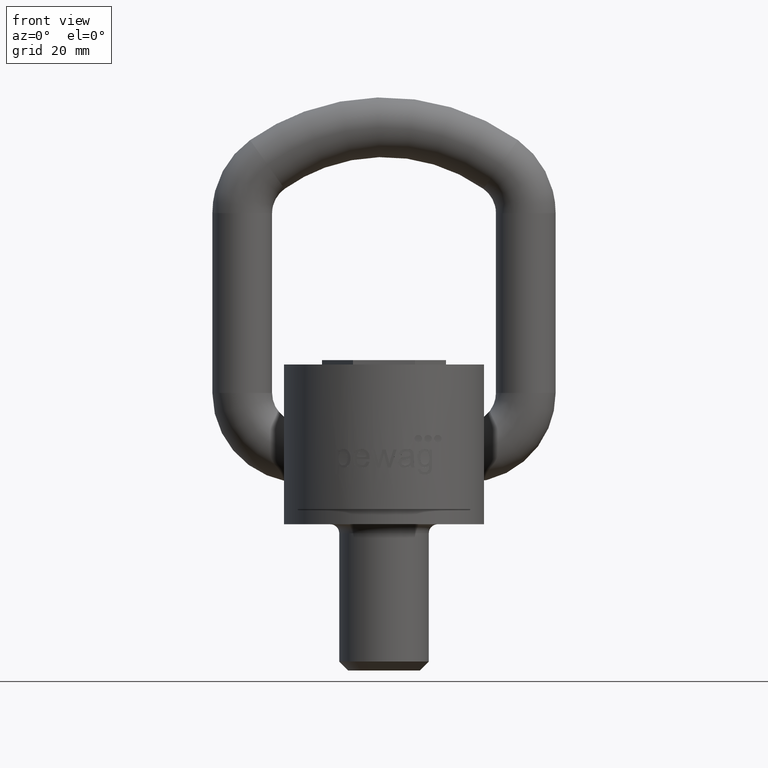
[diagram: clean part render]
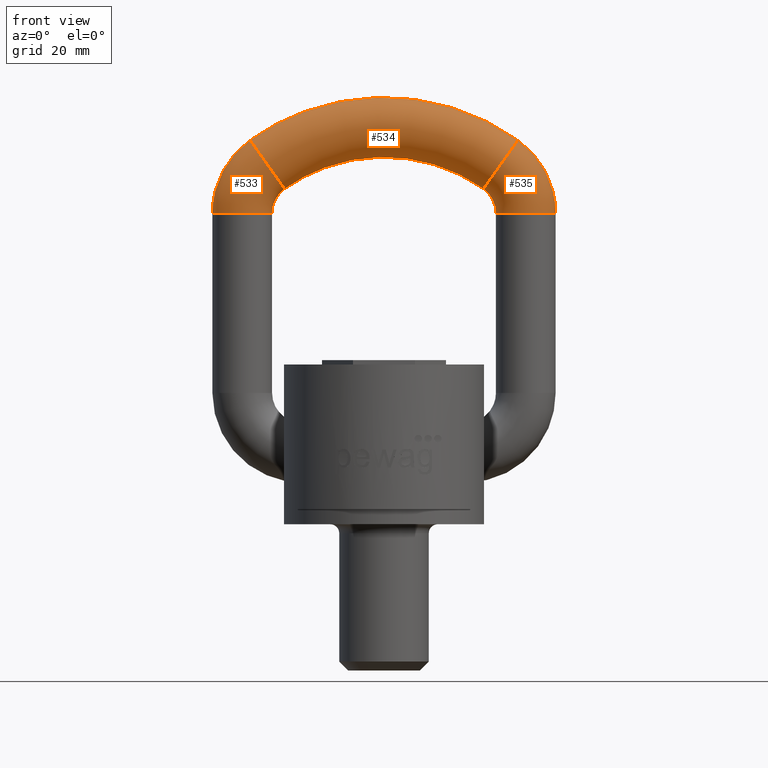
[diagram: same view with one multi-face feature highlighted, each face labeled with its STEP entity id]
A machine part, front view. The highlighted faces form ONE feature: a constant-radius fillet chain: 3 tangent blend faces with common blend radius 10 mm. The faces share edges in the B-rep.
Their STEP definitions:
[1] entity #533 (Torus):
#233=TOROIDAL_SURFACE('',#2587,20.,10.);
#533=ADVANCED_FACE('',(#617,#618),#233,.T.);
#617=FACE_BOUND('',#781,.T.);
#618=FACE_BOUND('',#782,.T.);
#781=EDGE_LOOP('',(#1747));
#782=EDGE_LOOP('',(#1748));
#1129=CIRCLE('',#2584,10.);
#1130=CIRCLE('',#2586,10.);
#1747=ORIENTED_EDGE('',*,*,#2276,.T.);
#1748=ORIENTED_EDGE('',*,*,#2275,.F.);
#1964=VERTEX_POINT('',#5158);
#1965=VERTEX_POINT('',#5161);
#2275=EDGE_CURVE('',#1964,#1964,#1129,.T.);
#2276=EDGE_CURVE('',#1965,#1965,#1130,.T.);
#2584=AXIS2_PLACEMENT_3D('',#5157,#3030,#3031);
#2586=AXIS2_PLACEMENT_3D('',#5160,#3034,#3035);
#2587=AXIS2_PLACEMENT_3D('',#5162,#3036,#3037);
#3030=DIRECTION('',(-8.32667268468867E-16,0.,-1.));
#3031=DIRECTION('',(-1.,0.,1.38777878078145E-15));
#3034=DIRECTION('',(-0.815364914991035,0.,-0.578947368421052));
#3035=DIRECTION('',(-0.578947368421052,0.,0.815364914991035));
#3036=DIRECTION('',(0.,-1.,0.));
#3037=DIRECTION('',(0.,0.,-1.));
#5157=CARTESIAN_POINT('',(-47.5,33.,99.2298334620742));
#5158=CARTESIAN_POINT('',(-57.5,33.,99.2298334620742));
#5160=CARTESIAN_POINT('',(-39.0789473684211,33.,115.537131761895));
#5161=CARTESIAN_POINT('',(-44.8684210526316,33.,123.690780911805));
#5162=CARTESIAN_POINT('',(-27.5,33.,99.2298334620742));
[2] entity #534 (Torus):
#234=TOROIDAL_SURFACE('',#2589,67.5,10.);
#534=ADVANCED_FACE('',(#619,#620),#234,.T.);
#619=FACE_BOUND('',#783,.T.);
#620=FACE_BOUND('',#784,.T.);
#783=EDGE_LOOP('',(#1749));
#784=EDGE_LOOP('',(#1750));
#1130=CIRCLE('',#2586,10.);
#1131=CIRCLE('',#2588,10.);
#1749=ORIENTED_EDGE('',*,*,#2277,.T.);
#1750=ORIENTED_EDGE('',*,*,#2276,.F.);
#1965=VERTEX_POINT('',#5161);
#1966=VERTEX_POINT('',#5164);
#2276=EDGE_CURVE('',#1965,#1965,#1130,.T.);
#2277=EDGE_CURVE('',#1966,#1966,#1131,.T.);
#2586=AXIS2_PLACEMENT_3D('',#5160,#3034,#3035);
#2588=AXIS2_PLACEMENT_3D('',#5163,#3038,#3039);
#2589=AXIS2_PLACEMENT_3D('',#5165,#3040,#3041);
#3034=DIRECTION('',(-0.815364914991035,0.,-0.578947368421052));
#3035=DIRECTION('',(-0.578947368421052,0.,0.815364914991035));
#3038=DIRECTION('',(-0.815364914991035,0.,0.578947368421053));
#3039=DIRECTION('',(0.578947368421053,0.,0.815364914991035));
#3040=DIRECTION('',(0.,-1.,0.));
#3041=DIRECTION('',(0.,0.,-1.));
#5160=CARTESIAN_POINT('',(-39.0789473684211,33.,115.537131761895));
#5161=CARTESIAN_POINT('',(-44.8684210526316,33.,123.690780911805));
#5163=CARTESIAN_POINT('',(39.0789473684211,33.,115.537131761895));
#5164=CARTESIAN_POINT('',(44.8684210526316,33.,123.690780911805));
#5165=CARTESIAN_POINT('',(0.,33.,60.5));
[3] entity #535 (Torus):
#235=TOROIDAL_SURFACE('',#2591,20.,10.);
#535=ADVANCED_FACE('',(#621,#622),#235,.T.);
#621=FACE_BOUND('',#785,.T.);
#622=FACE_BOUND('',#786,.T.);
#785=EDGE_LOOP('',(#1751));
#786=EDGE_LOOP('',(#1752));
#1131=CIRCLE('',#2588,10.);
#1132=CIRCLE('',#2590,10.);
#1751=ORIENTED_EDGE('',*,*,#2277,.F.);
#1752=ORIENTED_EDGE('',*,*,#2278,.T.);
#1966=VERTEX_POINT('',#5164);
#1967=VERTEX_POINT('',#5167);
#2277=EDGE_CURVE('',#1966,#1966,#1131,.T.);
#2278=EDGE_CURVE('',#1967,#1967,#1132,.T.);
#2588=AXIS2_PLACEMENT_3D('',#5163,#3038,#3039);
#2590=AXIS2_PLACEMENT_3D('',#5166,#3042,#3043);
#2591=AXIS2_PLACEMENT_3D('',#5168,#3044,#3045);
#3038=DIRECTION('',(-0.815364914991035,0.,0.578947368421053));
#3039=DIRECTION('',(0.578947368421053,0.,0.815364914991035));
#3042=DIRECTION('',(1.84331036808373E-15,0.,1.));
#3043=DIRECTION('',(1.,0.,-1.38777878078145E-15));
#3044=DIRECTION('',(0.,1.,0.));
#3045=DIRECTION('',(0.,0.,1.));
#5163=CARTESIAN_POINT('',(39.0789473684211,33.,115.537131761895));
#5164=CARTESIAN_POINT('',(44.8684210526316,33.,123.690780911805));
#5166=CARTESIAN_POINT('',(47.5,33.,99.2298334620741));
#5167=CARTESIAN_POINT('',(57.5,33.,99.2298334620741));
#5168=CARTESIAN_POINT('',(27.5,33.,99.2298334620742));